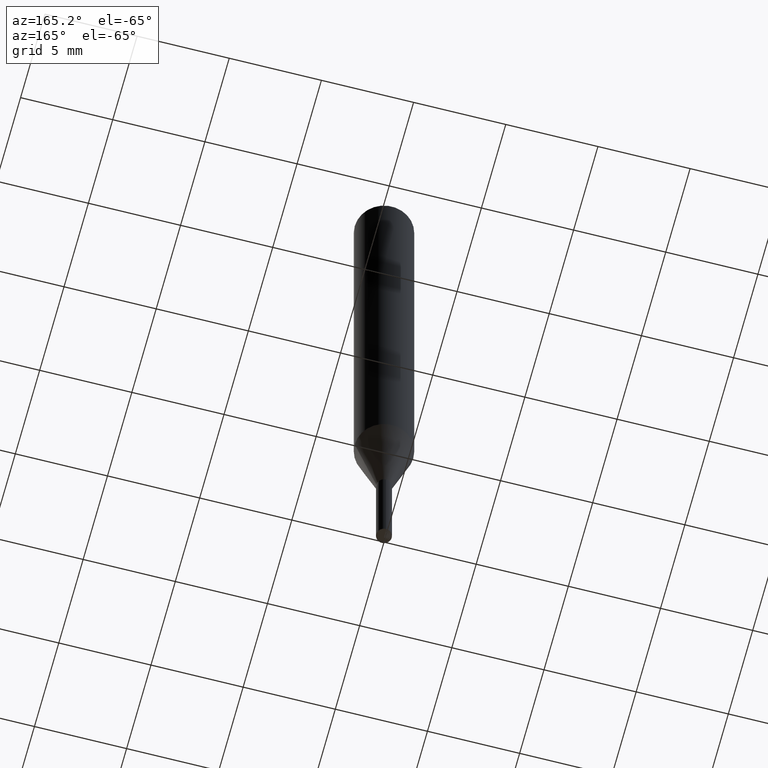
[diagram: clean part render]
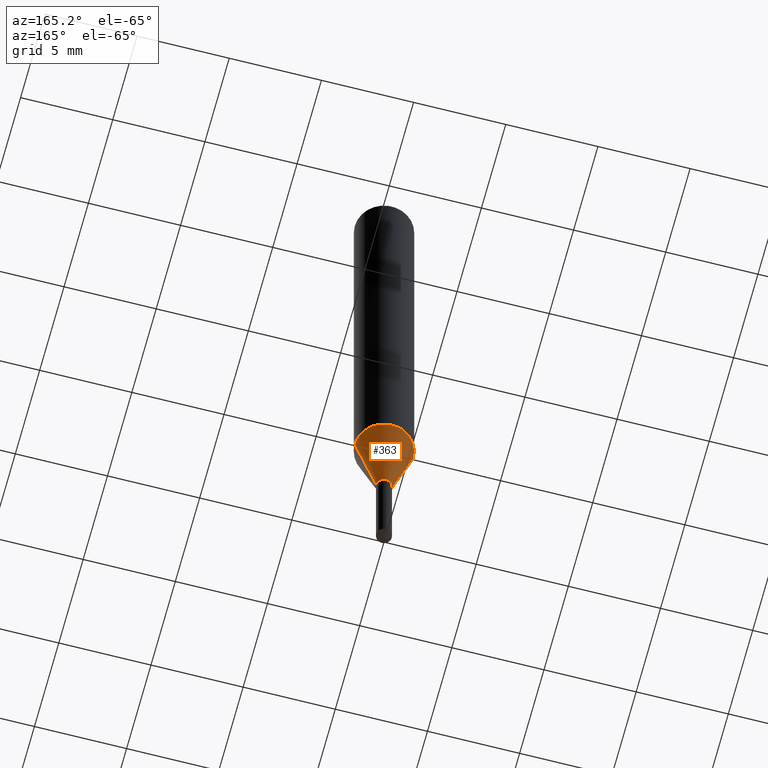
[diagram: same view with one face highlighted and labeled with its STEP entity id]
A machine part, auxiliary view. The second image highlights one B-rep face of the part: STEP entity #363.
In plain terms, the highlighted conical surface has half-angle 15 deg.
Its self-contained STEP definition (entity closure, byte-faithful):
#3 = CARTESIAN_POINT ( 'NONE',  ( 0.01650000000000000078, -4.483062039074598658E-15, -1.251000000000000112 ) ) ;
#44 = AXIS2_PLACEMENT_3D ( 'NONE', #190, #339, #237 ) ;
#71 = DIRECTION ( 'NONE',  ( 0.2588190451025281225, 1.565188264969568128E-15, 0.9659258262890662028 ) ) ;
#75 = VERTEX_POINT ( 'NONE', #273 ) ;
#89 = EDGE_CURVE ( 'NONE', #161, #113, #120, .T. ) ;
#94 = AXIS2_PLACEMENT_3D ( 'NONE', #262, #232, #417 ) ;
#111 = DIRECTION ( 'NONE',  ( -0.2588190451025281225, 5.211531920934590485E-15, 0.9659258262890662028 ) ) ;
#113 = VERTEX_POINT ( 'NONE', #241 ) ;
#120 = CIRCLE ( 'NONE', #94, 0.06250000000000013878 ) ;
#135 = VECTOR ( 'NONE', #111, 39.37007874015748854 ) ;
#150 = DIRECTION ( 'NONE',  ( 1.000000000000000000, -6.982962677686243834E-15, 0.000000000000000000 ) ) ;
#161 = VERTEX_POINT ( 'NONE', #373 ) ;
#171 = CIRCLE ( 'NONE', #230, 0.01650000000000000078 ) ;
#190 = CARTESIAN_POINT ( 'NONE',  ( 3.059281476537606349E-29, -4.367843154892775478E-15, -1.251000000000000112 ) ) ;
#192 = CARTESIAN_POINT ( 'NONE',  ( 0.01650000000000000078, -4.483062039074598658E-15, -1.251000000000000112 ) ) ;
#196 = CARTESIAN_POINT ( 'NONE',  ( 3.059281476537606349E-29, -4.367843154892775478E-15, -1.251000000000000112 ) ) ;
#230 = AXIS2_PLACEMENT_3D ( 'NONE', #196, #416, #150 ) ;
#231 = FACE_OUTER_BOUND ( 'NONE', #271, .T. ) ;
#232 = DIRECTION ( 'NONE',  ( -2.445468806185136597E-29, 3.491481338843145583E-15, 1.000000000000000000 ) ) ;
#237 = DIRECTION ( 'NONE',  ( 1.000000000000000000, -6.982962677686243834E-15, 0.000000000000000000 ) ) ;
#241 = CARTESIAN_POINT ( 'NONE',  ( -0.06250000000000013878, -3.324356200531632040E-15, -1.079325662851836398 ) ) ;
#252 = ORIENTED_EDGE ( 'NONE', *, *, #379, .F. ) ;
#259 = CARTESIAN_POINT ( 'NONE',  ( -0.01650000000000000078, -4.250603603492358449E-15, -1.251000000000000112 ) ) ;
#262 = CARTESIAN_POINT ( 'NONE',  ( 2.639457240219261592E-29, -3.768445410381695839E-15, -1.079325662851836398 ) ) ;
#271 = EDGE_LOOP ( 'NONE', ( #383, #293, #388, #252 ) ) ;
#273 = CARTESIAN_POINT ( 'NONE',  ( -0.01650000000000000078, -3.986123892074990009E-15, -1.251000000000000112 ) ) ;
#293 = ORIENTED_EDGE ( 'NONE', *, *, #402, .T. ) ;
#305 = LINE ( 'NONE', #259, #135 ) ;
#339 = DIRECTION ( 'NONE',  ( -2.445468806185136597E-29, 3.491481338843145583E-15, 1.000000000000000000 ) ) ;
#348 = EDGE_CURVE ( 'NONE', #488, #75, #171, .T. ) ;
#363 = ADVANCED_FACE ( 'NONE', ( #231 ), #394, .T. ) ;
#373 = CARTESIAN_POINT ( 'NONE',  ( 0.06250000000000013878, -4.204880577737087508E-15, -1.079325662851836398 ) ) ;
#379 = EDGE_CURVE ( 'NONE', #488, #161, #489, .T. ) ;
#383 = ORIENTED_EDGE ( 'NONE', *, *, #348, .T. ) ;
#388 = ORIENTED_EDGE ( 'NONE', *, *, #89, .F. ) ;
#394 = CONICAL_SURFACE ( 'NONE', #44, 0.01650000000000000078, 0.2617993877991570684 ) ;
#402 = EDGE_CURVE ( 'NONE', #75, #113, #305, .T. ) ;
#416 = DIRECTION ( 'NONE',  ( -2.445468806185136597E-29, 3.491481338843145583E-15, 1.000000000000000000 ) ) ;
#417 = DIRECTION ( 'NONE',  ( 1.000000000000000000, -6.982962677686270655E-15, 0.000000000000000000 ) ) ;
#419 = VECTOR ( 'NONE', #71, 39.37007874015748854 ) ;
#488 = VERTEX_POINT ( 'NONE', #3 ) ;
#489 = LINE ( 'NONE', #192, #419 ) ;